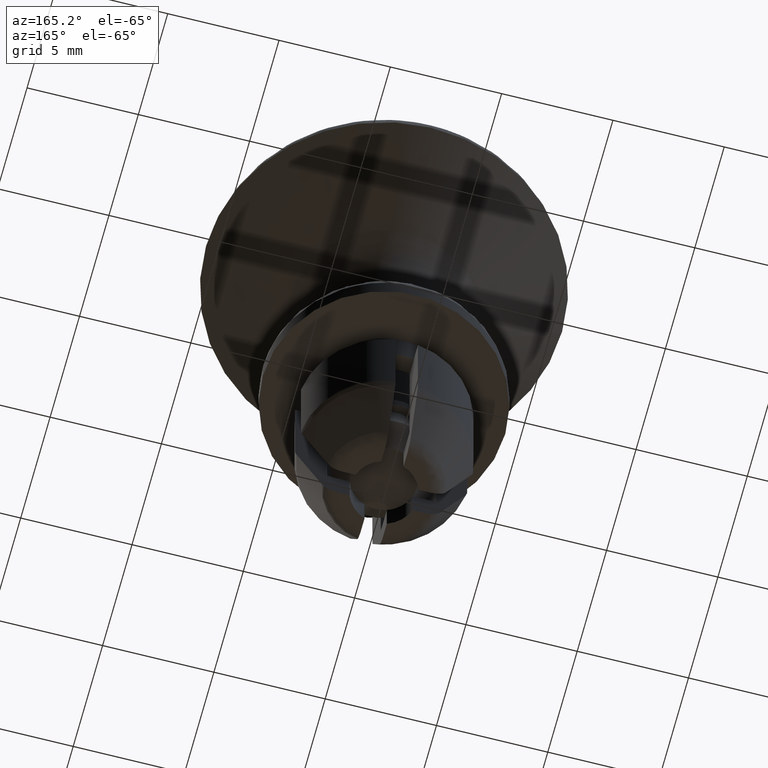
[diagram: clean part render]
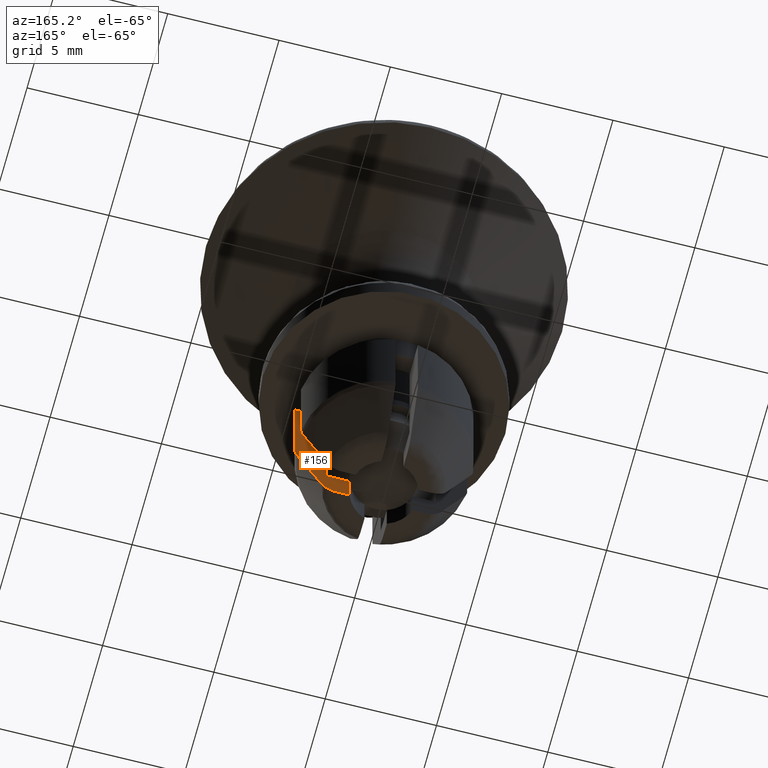
[diagram: same view with one face highlighted and labeled with its STEP entity id]
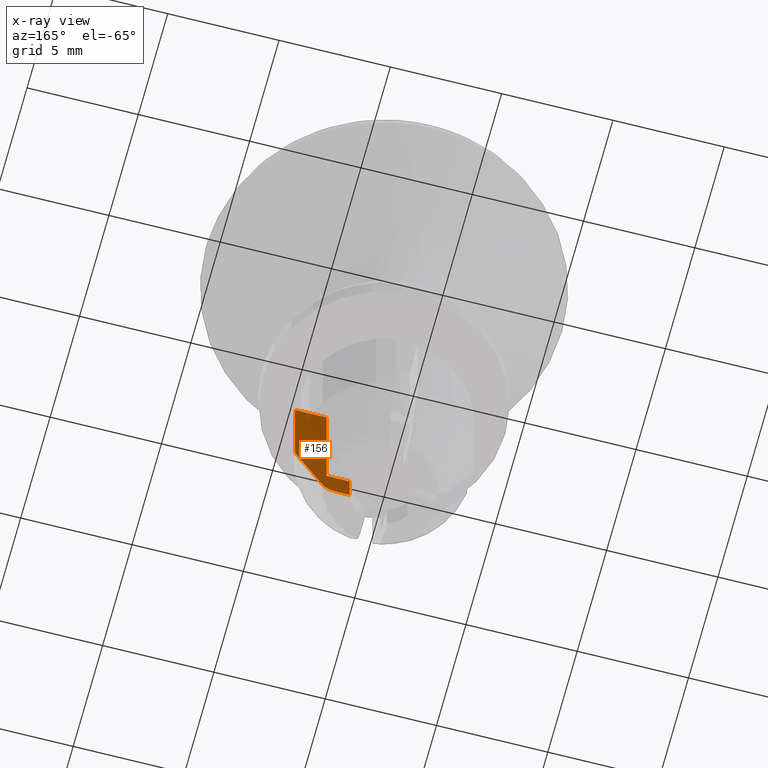
[diagram: x-ray of the same camera — body ghosted, the highlighted face saturated]
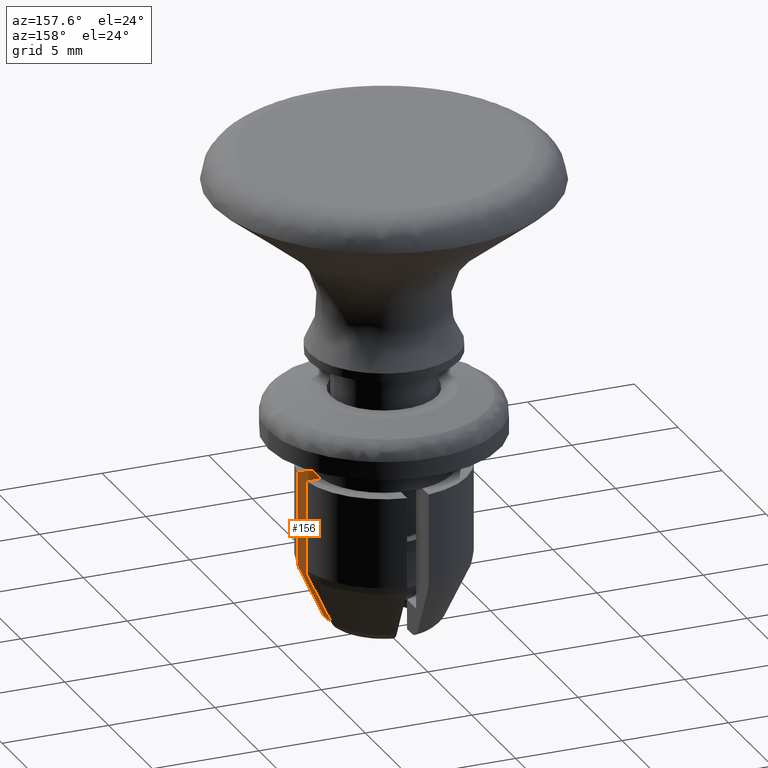
[diagram: same view with one face highlighted and labeled with its STEP entity id]
A machine part, auxiliary view. The second image highlights one B-rep face of the part: STEP entity #156.
The next image is the same camera in x-ray: the body ghosted, the highlighted face saturated — about 19% of this face is hidden behind the body in this view.
A second angle (auxiliary view) of the same face is appended — the face is thin or edge-on in the first view.
In plain terms, the highlighted planar face has unit normal (0, 1, 0).
Its self-contained STEP definition (entity closure, byte-faithful):
#156=ADVANCED_FACE('',(#636),#635,.T.);
#635=PLANE('',#1305);
#636=FACE_OUTER_BOUND('',#1306,.T.);
#1302=CARTESIAN_POINT('',(1.16885332649E+00,-5.00000000000E-01,-1.17403300002E+01));
#1303=DIRECTION('',(0.00000000000E+00,1.00000000000E+00,0.00000000000E+00));
#1304=DIRECTION('',(0.00000000000E+00,0.00000000000E+00,1.00000000000E+00));
#1305=AXIS2_PLACEMENT_3D('',#1302,#1303,#1304);
#1306=EDGE_LOOP('',(#1872,#1873,#1874,#1875,#1876,#1877,#1878,#1879,#1880,#1881));
#1872=ORIENTED_EDGE('',*,*,#2186,.F.);
#1873=ORIENTED_EDGE('',*,*,#2150,.F.);
#1874=ORIENTED_EDGE('',*,*,#2163,.F.);
#1875=ORIENTED_EDGE('',*,*,#2127,.F.);
#1876=ORIENTED_EDGE('',*,*,#2125,.F.);
#1877=ORIENTED_EDGE('',*,*,#2181,.F.);
#1878=ORIENTED_EDGE('',*,*,#2175,.F.);
#1879=ORIENTED_EDGE('',*,*,#2169,.T.);
#1880=ORIENTED_EDGE('',*,*,#2106,.T.);
#1881=ORIENTED_EDGE('',*,*,#2140,.T.);
#2106=EDGE_CURVE('',#2627,#2620,#2628,.T.);
#2125=EDGE_CURVE('',#2744,#2751,#2752,.T.);
#2127=EDGE_CURVE('',#2751,#2764,#2765,.T.);
#2140=EDGE_CURVE('',#2620,#2845,#2852,.T.);
#2150=EDGE_CURVE('',#2911,#2891,#2918,.T.);
#2163=EDGE_CURVE('',#2764,#2911,#3002,.T.);
#2169=EDGE_CURVE('',#3039,#2627,#3040,.T.);
#2175=EDGE_CURVE('',#3039,#3077,#3078,.T.);
#2181=EDGE_CURVE('',#3077,#2744,#3116,.T.);
#2186=EDGE_CURVE('',#2891,#2845,#3146,.T.);
#2620=VERTEX_POINT('',#3813);
#2627=VERTEX_POINT('',#3818);
#2628=LINE('',#3819,#3820);
#2744=VERTEX_POINT('',#3894);
#2751=VERTEX_POINT('',#3899);
#2752=(BOUNDED_CURVE() B_SPLINE_CURVE(3,(#3900,#3901,#3902,#3903,#3904,#3905),.UNSPECIFIED.,.F.,.F.) B_SPLINE_CURVE_WITH_KNOTS((4,2,4),(1.86419617907E-03,2.03361510426E-03,2.20303402944E-03),.UNSPECIFIED.) CURVE() GEOMETRIC_REPRESENTATION_ITEM() RATIONAL_B_SPLINE_CURVE((1.00000000000E+00,1.00000000000E+00,1.00000000000E+00,1.00000000000E+00,1.00000000000E+00,1.00000000000E+00)) REPRESENTATION_ITEM('') );
#2764=VERTEX_POINT('',#3910);
#2765=LINE('',#3911,#3912);
#2845=VERTEX_POINT('',#3966);
#2852=LINE('',#3971,#3972);
#2891=VERTEX_POINT('',#3995);
#2911=VERTEX_POINT('',#4009);
#2918=LINE('',#4014,#4015);
#3002=LINE('',#4067,#4068);
#3039=VERTEX_POINT('',#4089);
#3040=LINE('',#4090,#4091);
#3077=VERTEX_POINT('',#4116);
#3078=(BOUNDED_CURVE() B_SPLINE_CURVE(3,(#4117,#4118,#4119,#4120,#4121,#4122),.UNSPECIFIED.,.F.,.F.) B_SPLINE_CURVE_WITH_KNOTS((4,2,4),(4.64330165083E-04,8.94511229238E-04,1.32471041888E-03),.UNSPECIFIED.) CURVE() GEOMETRIC_REPRESENTATION_ITEM() RATIONAL_B_SPLINE_CURVE((1.00000000000E+00,1.00000000000E+00,1.00000000000E+00,1.00000000000E+00,1.00000000000E+00,1.00000000000E+00)) REPRESENTATION_ITEM('') );
#3116=(BOUNDED_CURVE() B_SPLINE_CURVE(3,(#4145,#4146,#4147,#4148),.UNSPECIFIED.,.F.,.F.) B_SPLINE_CURVE_WITH_KNOTS((4,4),(3.64126434805E-03,6.30103888672E-03),.UNSPECIFIED.) CURVE() GEOMETRIC_REPRESENTATION_ITEM() RATIONAL_B_SPLINE_CURVE((1.00000000000E+00,1.00000000000E+00,1.00000000000E+00,1.00000000000E+00)) REPRESENTATION_ITEM('') );
#3146=LINE('',#4168,#4169);
#3813=CARTESIAN_POINT('',(1.41421356237E+00,-5.00000000000E-01,-9.60030000000E+00));
#3818=CARTESIAN_POINT('',(1.41421356237E+00,-5.00000000000E-01,-1.10003000000E+01));
#3819=CARTESIAN_POINT('',(1.41421356237E+00,-5.00000000000E-01,-1.10003000000E+01));
#3820=VECTOR('',#3821,1.40000000000E+00);
#3821=DIRECTION('',(0.00000000000E+00,0.00000000000E+00,1.00000000000E+00));
#3894=CARTESIAN_POINT('',(3.79146062764E+00,-5.00000000000E-01,-8.16238480092E+00));
#3899=CARTESIAN_POINT('',(3.86781592116E+00,-5.00000000000E-01,-7.83400000000E+00));
#3900=CARTESIAN_POINT('',(3.79146062763E+00,-5.00000000000E-01,-8.16238480092E+00));
#3901=CARTESIAN_POINT('',(3.81640532658E+00,-5.00000000000E-01,-8.11160438406E+00));
#3902=CARTESIAN_POINT('',(3.83548111475E+00,-5.00000000000E-01,-8.05837975117E+00));
#3903=CARTESIAN_POINT('',(3.86143044740E+00,-5.00000000000E-01,-7.94684863619E+00));
#3904=CARTESIAN_POINT('',(3.86781592116E+00,-5.00000000000E-01,-7.89056298747E+00));
#3905=CARTESIAN_POINT('',(3.86781592116E+00,-5.00000000000E-01,-7.83400000000E+00));
#3910=CARTESIAN_POINT('',(3.86781592116E+00,-5.00000000000E-01,-3.60000000000E+00));
#3911=CARTESIAN_POINT('',(3.86781592116E+00,-5.00000000000E-01,-7.83400000000E+00));
#3912=VECTOR('',#3913,4.23400000000E+00);
#3913=DIRECTION('',(0.00000000000E+00,0.00000000000E+00,1.00000000000E+00));
#3966=CARTESIAN_POINT('',(2.44948974278E+00,-5.00000000000E-01,-9.60030000000E+00));
#3971=CARTESIAN_POINT('',(1.41421356237E+00,-5.00000000000E-01,-9.60030000000E+00));
#3972=VECTOR('',#3973,1.03527618041E+00);
#3973=DIRECTION('',(1.00000000000E+00,0.00000000000E+00,0.00000000000E+00));
#3995=CARTESIAN_POINT('',(2.44948974278E+00,-5.00000000000E-01,-3.60000000000E+00));
#4009=CARTESIAN_POINT('',(3.16069612586E+00,-5.00000000000E-01,-3.60000000000E+00));
#4014=CARTESIAN_POINT('',(3.16069612586E+00,-5.00000000000E-01,-3.60000000000E+00));
#4015=VECTOR('',#4016,7.11206383073E-01);
#4016=DIRECTION('',(-1.00000000000E+00,0.00000000000E+00,0.00000000000E+00));
#4067=CARTESIAN_POINT('',(3.86781592116E+00,-5.00000000000E-01,-3.60000000000E+00));
#4068=VECTOR('',#4069,7.07119795307E-01);
#4069=DIRECTION('',(-1.00000000000E+00,0.00000000000E+00,0.00000000000E+00));
#4089=CARTESIAN_POINT('',(1.95950752863E+00,-5.00004366201E-01,-1.10003000000E+01));
#4090=CARTESIAN_POINT('',(1.95950752863E+00,-5.00000000000E-01,-1.10003000000E+01));
#4091=VECTOR('',#4092,5.45293966253E-01);
#4092=DIRECTION('',(-1.00000000000E+00,0.00000000000E+00,0.00000000000E+00));
#4116=CARTESIAN_POINT('',(2.65533500711E+00,-5.00000000000E-01,-1.05674000000E+01));
#4117=CARTESIAN_POINT('',(1.95950752863E+00,-5.00000000000E-01,-1.10003000002E+01));
#4118=CARTESIAN_POINT('',(2.10320985077E+00,-5.00000000000E-01,-1.10002966022E+01));
#4119=CARTESIAN_POINT('',(2.24835396483E+00,-5.00000000000E-01,-1.09599705531E+01));
#4120=CARTESIAN_POINT('',(2.49284148277E+00,-5.00000000000E-01,-1.08089170998E+01));
#4121=CARTESIAN_POINT('',(2.59300913039E+00,-5.00000000000E-01,-1.06986550835E+01));
#4122=CARTESIAN_POINT('',(2.65533500711E+00,-5.00000000000E-01,-1.05674000000E+01));
#4145=CARTESIAN_POINT('',(2.65533500711E+00,-5.00000000000E-01,-1.05674000000E+01));
#4146=CARTESIAN_POINT('',(3.03564503778E+00,-5.00000000000E-01,-9.76648668025E+00));
#4147=CARTESIAN_POINT('',(3.41387641556E+00,-5.00000000000E-01,-8.96458658010E+00));
#4148=CARTESIAN_POINT('',(3.79146062763E+00,-5.00000000000E-01,-8.16238480092E+00));
#4168=CARTESIAN_POINT('',(2.44948974278E+00,-5.00000000000E-01,-3.60000000000E+00));
#4169=VECTOR('',#4170,6.00030000000E+00);
#4170=DIRECTION('',(0.00000000000E+00,0.00000000000E+00,-1.00000000000E+00));